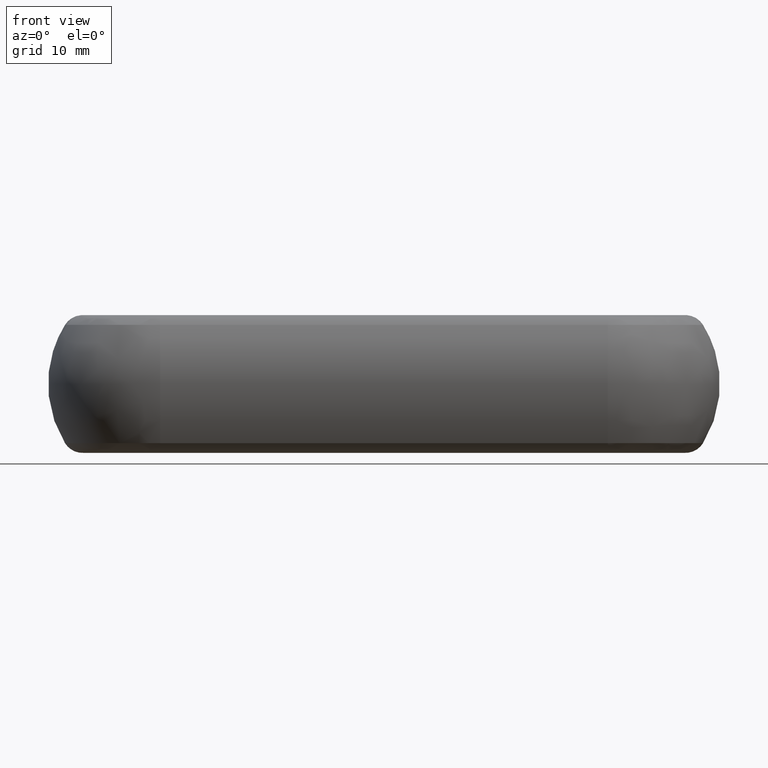
[diagram: clean part render]
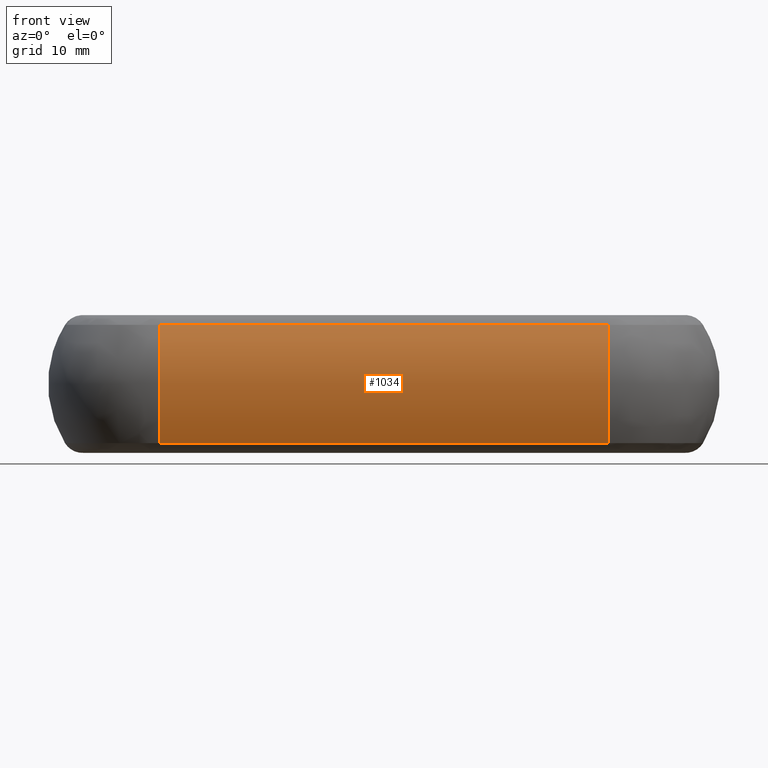
[diagram: same view with one face highlighted and labeled with its STEP entity id]
A machine part, front view. The second image highlights one B-rep face of the part: STEP entity #1034.
In plain terms, the highlighted face is a freeform B-spline surface patch.
Its self-contained STEP definition (entity closure, byte-faithful):
#676=CARTESIAN_POINT('',(61.0,-28.037735849056599,-6.867924528301869));
#677=VERTEX_POINT('',#676);
#798=CARTESIAN_POINT('',(61.0,-28.037735849056599,6.867924528301880));
#799=VERTEX_POINT('',#798);
#857=CARTESIAN_POINT('',(61.0,-28.037735849056610,-6.867924528301875));
#858=CARTESIAN_POINT('',(61.0,-32.311111111111103,6.071532E-015));
#859=CARTESIAN_POINT('',(61.0,-28.037735849056610,6.867924528301883));
#867=(BOUNDED_CURVE()B_SPLINE_CURVE(2,(#857,#858,#859),.UNSPECIFIED.,.F.,.U.)CURVE()GEOMETRIC_REPRESENTATION_ITEM()QUASI_UNIFORM_CURVE()RATIONAL_B_SPLINE_CURVE((1.0,0.849056603773585,1.0))REPRESENTATION_ITEM(''));
#868=EDGE_CURVE('',#677,#799,#867,.T.);
#890=CARTESIAN_POINT('',(9.0,-28.037735849056599,-6.867924528301869));
#891=VERTEX_POINT('',#890);
#892=CARTESIAN_POINT('',(9.0,-28.037735849056599,-6.867924528301869));
#893=CARTESIAN_POINT('',(61.0,-28.037735849056599,-6.867924528301869));
#894=QUASI_UNIFORM_CURVE('',1,(#892,#893),.UNSPECIFIED.,.F.,.U.);
#895=EDGE_CURVE('',#891,#677,#894,.T.);
#976=CARTESIAN_POINT('',(9.0,-28.037735849056599,6.867924528301880));
#977=VERTEX_POINT('',#976);
#993=CARTESIAN_POINT('',(9.0,-28.037735849056599,6.867924528301880));
#994=CARTESIAN_POINT('',(61.0,-28.037735849056599,6.867924528301880));
#995=QUASI_UNIFORM_CURVE('',1,(#993,#994),.UNSPECIFIED.,.F.,.U.);
#996=EDGE_CURVE('',#977,#799,#995,.T.);
#1002=CARTESIAN_POINT('',(7.699999999999997,-27.727655709894439,-7.342847061594646));
#1003=CARTESIAN_POINT('',(62.332500000000010,-27.727655709894432,-7.342847061594646));
#1004=CARTESIAN_POINT('',(7.699999999999999,-32.774254677252237,0.030066438249666));
#1005=CARTESIAN_POINT('',(62.332500000000024,-32.774254677252230,0.030066438249660));
#1006=CARTESIAN_POINT('',(7.700000000000001,-27.699586271650070,7.383688347669979));
#1007=CARTESIAN_POINT('',(62.332500000000010,-27.699586271650070,7.383688347669972));
#1015=(BOUNDED_SURFACE()B_SPLINE_SURFACE(1,2,((#1002,#1004,#1006),(#1003,#1005,#1007)),.UNSPECIFIED.,.F.,.F.,.U.)B_SPLINE_SURFACE_WITH_KNOTS((2,2),(3,3),(0.0,54.632500000000007),(0.0,16.146429180067202),.UNSPECIFIED.)GEOMETRIC_REPRESENTATION_ITEM()RATIONAL_B_SPLINE_SURFACE(((1.0,0.824126188622016,1.0),(1.0,0.824126188622016,1.0)))REPRESENTATION_ITEM('')SURFACE());
#1016=ORIENTED_EDGE('',*,*,#996,.F.);
#1017=CARTESIAN_POINT('',(9.0,-28.037735849056610,-6.867924528301875));
#1018=CARTESIAN_POINT('',(9.0,-32.311111111111103,6.071532E-015));
#1019=CARTESIAN_POINT('',(9.0,-28.037735849056610,6.867924528301883));
#1027=(BOUNDED_CURVE()B_SPLINE_CURVE(2,(#1017,#1018,#1019),.UNSPECIFIED.,.F.,.U.)CURVE()GEOMETRIC_REPRESENTATION_ITEM()QUASI_UNIFORM_CURVE()RATIONAL_B_SPLINE_CURVE((1.0,0.849056603773585,1.0))REPRESENTATION_ITEM(''));
#1028=EDGE_CURVE('',#891,#977,#1027,.T.);
#1029=ORIENTED_EDGE('',*,*,#1028,.F.);
#1030=ORIENTED_EDGE('',*,*,#895,.T.);
#1031=ORIENTED_EDGE('',*,*,#868,.T.);
#1032=EDGE_LOOP('',(#1016,#1029,#1030,#1031));
#1033=FACE_OUTER_BOUND('',#1032,.T.);
#1034=ADVANCED_FACE('',(#1033),#1015,.T.);